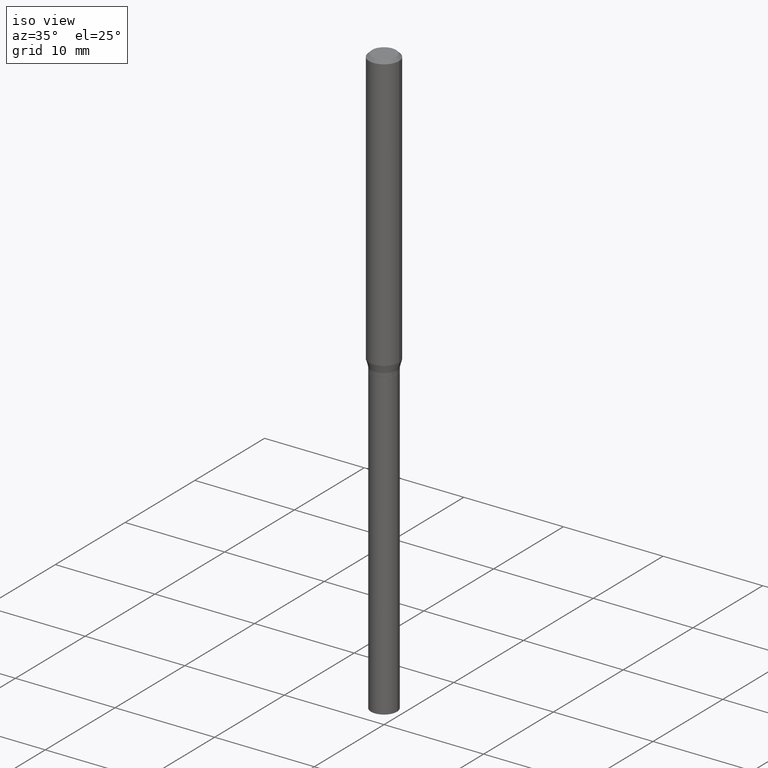
[diagram: clean part render]
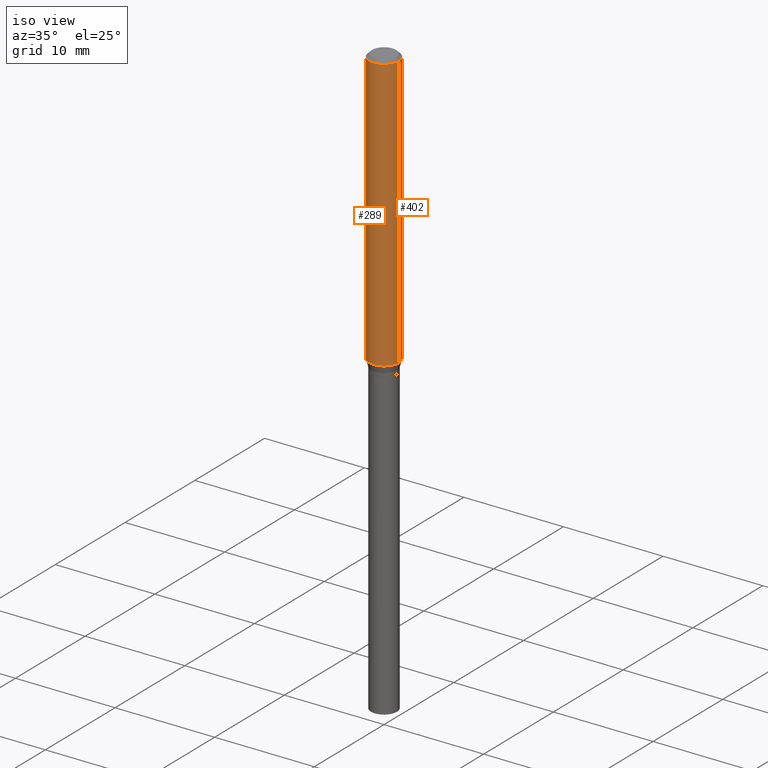
[diagram: same view with one multi-face feature highlighted, each face labeled with its STEP entity id]
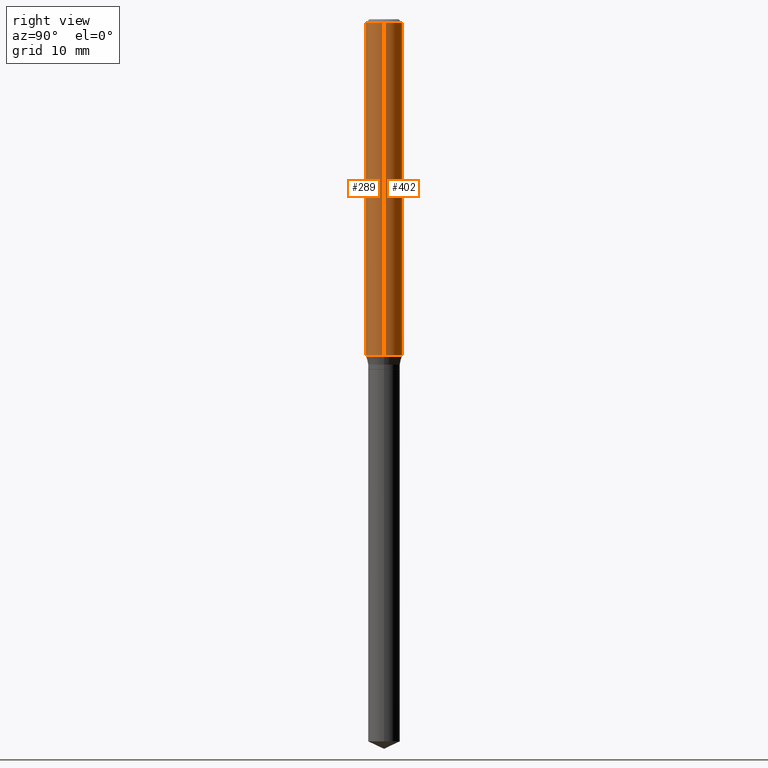
[diagram: same view with one multi-face feature highlighted, each face labeled with its STEP entity id]
A machine part, iso view. The highlighted faces form ONE feature: a constant-radius fillet chain: 2 tangent blend faces with common blend radius 1.4999 mm. The faces share edges in the B-rep.
A second angle (right view) of the same feature is appended — it is thin or edge-on in the first view.
Their STEP definitions:
[1] entity #402 (Cylinder):
#9 = CARTESIAN_POINT ( 'NONE',  ( -0.05905000000000013710, -3.383357863890323374E-15, -1.089203401160584006 ) ) ;
#16 = LINE ( 'NONE', #201, #224 ) ;
#22 = ORIENTED_EDGE ( 'NONE', *, *, #50, .T. ) ;
#25 = VERTEX_POINT ( 'NONE', #161 ) ;
#26 = CIRCLE ( 'NONE', #354, 0.05905000000000000526 ) ;
#44 = VECTOR ( 'NONE', #219, 39.37007874015748143 ) ;
#50 = EDGE_CURVE ( 'NONE', #180, #324, #16, .T. ) ;
#60 = DIRECTION ( 'NONE',  ( 1.000000000000000000, -6.982962677686266711E-15, 4.876176775795936353E-29 ) ) ;
#65 = EDGE_CURVE ( 'NONE', #332, #25, #358, .T. ) ;
#87 = DIRECTION ( 'NONE',  ( -2.445468806185136877E-29, 3.491481338843145188E-15, 1.000000000000000000 ) ) ;
#89 = CARTESIAN_POINT ( 'NONE',  ( 0.000000000000000000, 0.000000000000000000, 0.000000000000000000 ) ) ;
#109 = CARTESIAN_POINT ( 'NONE',  ( 0.05905000000000006771, -4.123439461173745257E-16, 2.879382386107503723E-30 ) ) ;
#159 = AXIS2_PLACEMENT_3D ( 'NONE', #463, #236, #199 ) ;
#161 = CARTESIAN_POINT ( 'NONE',  ( 0.05905000000000000526, -4.535783407291119586E-16, -0.01181000000000007738 ) ) ;
#177 = CARTESIAN_POINT ( 'NONE',  ( -0.05905000000000000526, -1.502508386517860213E-15, -0.01181000000000007738 ) ) ;
#178 = ORIENTED_EDGE ( 'NONE', *, *, #294, .T. ) ;
#180 = VERTEX_POINT ( 'NONE', #9 ) ;
#184 = AXIS2_PLACEMENT_3D ( 'NONE', #89, #243, #60 ) ;
#199 = DIRECTION ( 'NONE',  ( 1.000000000000000000, -6.982962677686264344E-15, 0.000000000000000000 ) ) ;
#201 = CARTESIAN_POINT ( 'NONE',  ( -0.05905000000000006771, 4.195754854663396409E-16, -2.904631170795525045E-30 ) ) ;
#208 = CARTESIAN_POINT ( 'NONE',  ( 0.05905000000000013710, -4.215277295474038182E-15, -1.089203401160584006 ) ) ;
#213 = ORIENTED_EDGE ( 'NONE', *, *, #272, .F. ) ;
#219 = DIRECTION ( 'NONE',  ( -2.445468806185136877E-29, 3.491481338843145188E-15, 1.000000000000000000 ) ) ;
#224 = VECTOR ( 'NONE', #87, 39.37007874015748143 ) ;
#236 = DIRECTION ( 'NONE',  ( -2.445468806185136597E-29, 3.491481338843145583E-15, 1.000000000000000000 ) ) ;
#243 = DIRECTION ( 'NONE',  ( -2.445468806185136597E-29, 3.491481338843145583E-15, 1.000000000000000000 ) ) ;
#248 = CYLINDRICAL_SURFACE ( 'NONE', #184, 0.05905000000000006771 ) ;
#272 = EDGE_CURVE ( 'NONE', #25, #324, #26, .T. ) ;
#294 = EDGE_CURVE ( 'NONE', #332, #180, #481, .T. ) ;
#313 = CARTESIAN_POINT ( 'NONE',  ( 2.888098660104665518E-31, -4.123439461173782112E-17, -0.01181000000000007738 ) ) ;
#324 = VERTEX_POINT ( 'NONE', #177 ) ;
#332 = VERTEX_POINT ( 'NONE', #208 ) ;
#354 = AXIS2_PLACEMENT_3D ( 'NONE', #313, #388, #397 ) ;
#358 = LINE ( 'NONE', #109, #44 ) ;
#388 = DIRECTION ( 'NONE',  ( -2.445468806185136597E-29, 3.491481338843145583E-15, 1.000000000000000000 ) ) ;
#397 = DIRECTION ( 'NONE',  ( 1.000000000000000000, -6.982962677686267499E-15, 0.000000000000000000 ) ) ;
#402 = ADVANCED_FACE ( 'NONE', ( #409 ), #248, .T. ) ;
#409 = FACE_OUTER_BOUND ( 'NONE', #410, .T. ) ;
#410 = EDGE_LOOP ( 'NONE', ( #178, #22, #213, #462 ) ) ;
#462 = ORIENTED_EDGE ( 'NONE', *, *, #65, .F. ) ;
#463 = CARTESIAN_POINT ( 'NONE',  ( 2.663612941128963987E-29, -3.802933349356663262E-15, -1.089203401160584006 ) ) ;
#481 = CIRCLE ( 'NONE', #159, 0.05905000000000013710 ) ;
[2] entity #289 (Cylinder):
#8 = FACE_OUTER_BOUND ( 'NONE', #490, .T. ) ;
#9 = CARTESIAN_POINT ( 'NONE',  ( -0.05905000000000013710, -3.383357863890323374E-15, -1.089203401160584006 ) ) ;
#16 = LINE ( 'NONE', #201, #224 ) ;
#25 = VERTEX_POINT ( 'NONE', #161 ) ;
#28 = ORIENTED_EDGE ( 'NONE', *, *, #96, .F. ) ;
#35 = CIRCLE ( 'NONE', #369, 0.05905000000000013710 ) ;
#44 = VECTOR ( 'NONE', #219, 39.37007874015748143 ) ;
#50 = EDGE_CURVE ( 'NONE', #180, #324, #16, .T. ) ;
#65 = EDGE_CURVE ( 'NONE', #332, #25, #358, .T. ) ;
#78 = DIRECTION ( 'NONE',  ( -2.445468806185136597E-29, 3.491481338843145583E-15, 1.000000000000000000 ) ) ;
#87 = DIRECTION ( 'NONE',  ( -2.445468806185136877E-29, 3.491481338843145188E-15, 1.000000000000000000 ) ) ;
#96 = EDGE_CURVE ( 'NONE', #324, #25, #449, .T. ) ;
#109 = CARTESIAN_POINT ( 'NONE',  ( 0.05905000000000006771, -4.123439461173745257E-16, 2.879382386107503723E-30 ) ) ;
#110 = AXIS2_PLACEMENT_3D ( 'NONE', #122, #157, #310 ) ;
#122 = CARTESIAN_POINT ( 'NONE',  ( 0.000000000000000000, 0.000000000000000000, 0.000000000000000000 ) ) ;
#157 = DIRECTION ( 'NONE',  ( -2.445468806185136597E-29, 3.491481338843145583E-15, 1.000000000000000000 ) ) ;
#161 = CARTESIAN_POINT ( 'NONE',  ( 0.05905000000000000526, -4.535783407291119586E-16, -0.01181000000000007738 ) ) ;
#177 = CARTESIAN_POINT ( 'NONE',  ( -0.05905000000000000526, -1.502508386517860213E-15, -0.01181000000000007738 ) ) ;
#180 = VERTEX_POINT ( 'NONE', #9 ) ;
#196 = AXIS2_PLACEMENT_3D ( 'NONE', #337, #262, #376 ) ;
#201 = CARTESIAN_POINT ( 'NONE',  ( -0.05905000000000006771, 4.195754854663396409E-16, -2.904631170795525045E-30 ) ) ;
#208 = CARTESIAN_POINT ( 'NONE',  ( 0.05905000000000013710, -4.215277295474038182E-15, -1.089203401160584006 ) ) ;
#215 = EDGE_CURVE ( 'NONE', #180, #332, #35, .T. ) ;
#219 = DIRECTION ( 'NONE',  ( -2.445468806185136877E-29, 3.491481338843145188E-15, 1.000000000000000000 ) ) ;
#224 = VECTOR ( 'NONE', #87, 39.37007874015748143 ) ;
#262 = DIRECTION ( 'NONE',  ( -2.445468806185136597E-29, 3.491481338843145583E-15, 1.000000000000000000 ) ) ;
#289 = ADVANCED_FACE ( 'NONE', ( #8 ), #467, .T. ) ;
#310 = DIRECTION ( 'NONE',  ( 1.000000000000000000, -6.982962677686266711E-15, 4.876176775795936353E-29 ) ) ;
#324 = VERTEX_POINT ( 'NONE', #177 ) ;
#332 = VERTEX_POINT ( 'NONE', #208 ) ;
#337 = CARTESIAN_POINT ( 'NONE',  ( 2.888098660104665518E-31, -4.123439461173782112E-17, -0.01181000000000007738 ) ) ;
#357 = DIRECTION ( 'NONE',  ( 1.000000000000000000, -6.982962677686264344E-15, 0.000000000000000000 ) ) ;
#358 = LINE ( 'NONE', #109, #44 ) ;
#369 = AXIS2_PLACEMENT_3D ( 'NONE', #425, #78, #357 ) ;
#372 = ORIENTED_EDGE ( 'NONE', *, *, #50, .F. ) ;
#376 = DIRECTION ( 'NONE',  ( 1.000000000000000000, -6.982962677686267499E-15, 0.000000000000000000 ) ) ;
#425 = CARTESIAN_POINT ( 'NONE',  ( 2.663612941128963987E-29, -3.802933349356663262E-15, -1.089203401160584006 ) ) ;
#435 = ORIENTED_EDGE ( 'NONE', *, *, #215, .T. ) ;
#449 = CIRCLE ( 'NONE', #196, 0.05905000000000000526 ) ;
#467 = CYLINDRICAL_SURFACE ( 'NONE', #110, 0.05905000000000006771 ) ;
#480 = ORIENTED_EDGE ( 'NONE', *, *, #65, .T. ) ;
#490 = EDGE_LOOP ( 'NONE', ( #372, #435, #480, #28 ) ) ;